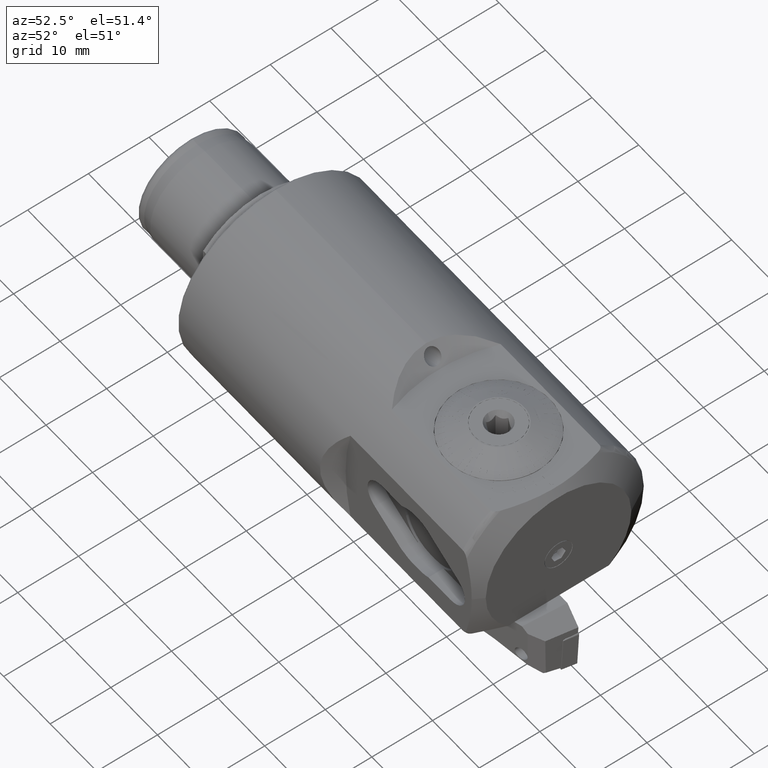
[diagram: clean part render]
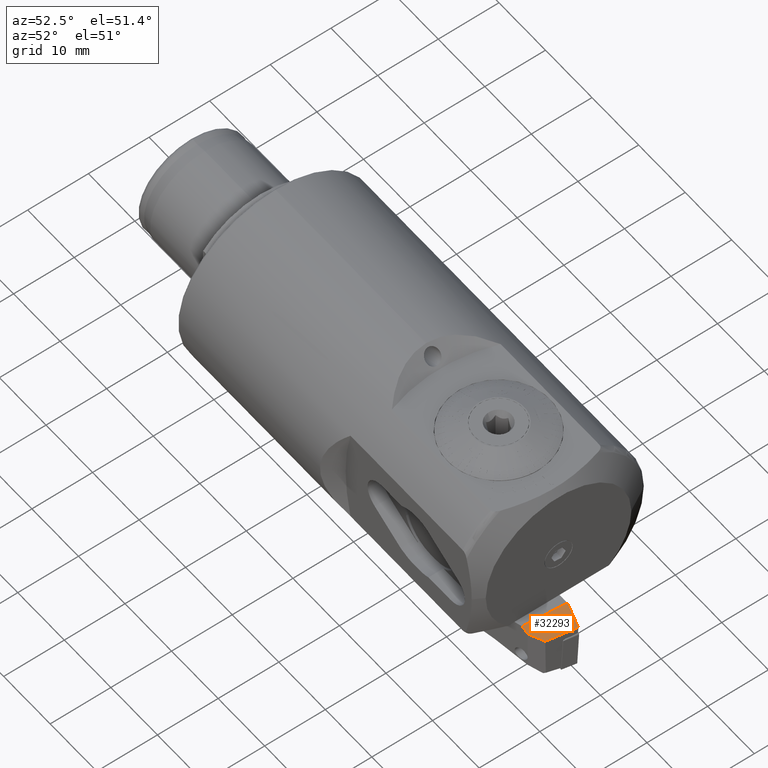
[diagram: same view with one face highlighted and labeled with its STEP entity id]
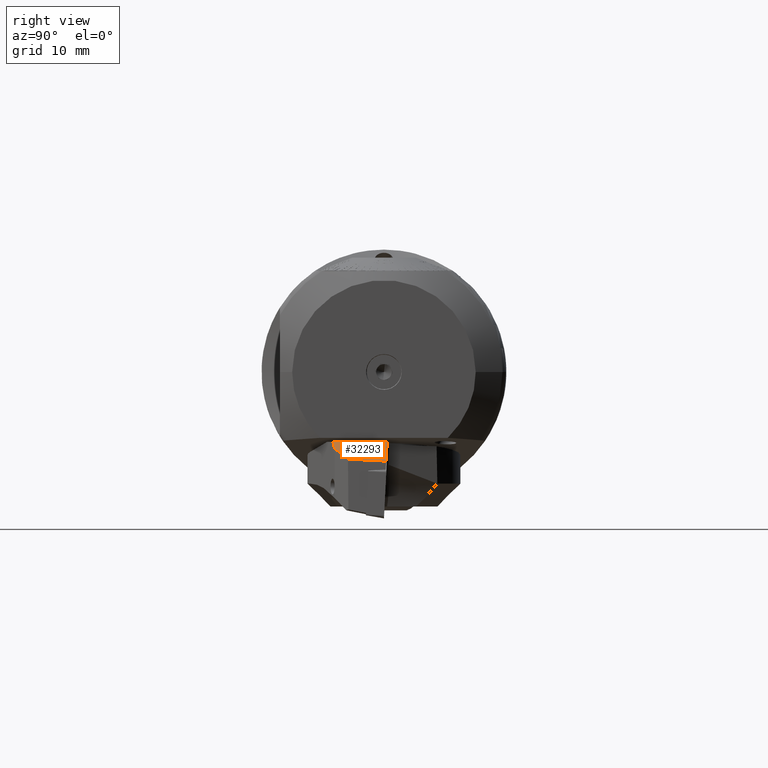
[diagram: same view with one face highlighted and labeled with its STEP entity id]
A machine part, auxiliary view. The second image highlights one B-rep face of the part: STEP entity #32293.
A second angle (right view) of the same face is appended — the face is thin or edge-on in the first view.
In plain terms, the highlighted planar face has unit normal (-0.7018, 0.049, -0.7106).
Its self-contained STEP definition (entity closure, byte-faithful):
#1159 = LINE ( 'NONE', #14587, #26738 ) ;
#1453 = VECTOR ( 'NONE', #4489, 999.9999999999998900 ) ;
#1561 = LINE ( 'NONE', #16248, #27882 ) ;
#2375 = FACE_OUTER_BOUND ( 'NONE', #12658, .T. ) ;
#2550 = ORIENTED_EDGE ( 'NONE', *, *, #31876, .T. ) ;
#3585 = CARTESIAN_POINT ( 'NONE',  ( 0.7068366098255680600, 16.12257449928120000, -4.704340046725548100 ) ) ;
#3625 = VECTOR ( 'NONE', #16512, 1000.000000000000100 ) ;
#4489 = DIRECTION ( 'NONE',  ( -0.5121376221280618000, 0.5638483933587421500, 0.6479120660303987500 ) ) ;
#5050 = CARTESIAN_POINT ( 'NONE',  ( 3.935914685523767400, 12.56745492527518400, -8.789489344497569700 ) ) ;
#5369 = VERTEX_POINT ( 'NONE', #8060 ) ;
#6364 = VECTOR ( 'NONE', #8809, 1000.000000000000200 ) ;
#6471 = EDGE_CURVE ( 'NONE', #32838, #30328, #8350, .T. ) ;
#6666 = DIRECTION ( 'NONE',  ( -0.7034912269333731800, 0.7097470068654202500, -0.03686841294868017200 ) ) ;
#6937 = ORIENTED_EDGE ( 'NONE', *, *, #13334, .F. ) ;
#8060 = CARTESIAN_POINT ( 'NONE',  ( 2.949999999999999300, 14.20964961220420400, 0.4239405582306213800 ) ) ;
#8350 = LINE ( 'NONE', #5050, #1453 ) ;
#8809 = DIRECTION ( 'NONE',  ( 0.0000000000000000000, 0.06971724848217233900, 0.9975667923823822200 ) ) ;
#11075 = DIRECTION ( 'NONE',  ( -0.7106477480614326000, -0.7018361144661940900, 0.04904943023328542400 ) ) ;
#11264 = CARTESIAN_POINT ( 'NONE',  ( 2.950000000000000200, 13.46828881965766000, -10.18400688547597000 ) ) ;
#11356 = ORIENTED_EDGE ( 'NONE', *, *, #19667, .F. ) ;
#12658 = EDGE_LOOP ( 'NONE', ( #30356, #29696, #2550, #6937, #11356 ) ) ;
#13334 = EDGE_CURVE ( 'NONE', #5369, #24959, #1159, .T. ) ;
#14587 = CARTESIAN_POINT ( 'NONE',  ( -6.387991958615755200, 23.63067945454023200, -0.06544286328332801800 ) ) ;
#14889 = LINE ( 'NONE', #24156, #3625 ) ;
#16248 = CARTESIAN_POINT ( 'NONE',  ( -3.417666168838506400, 20.28395017439399000, -4.917693735558955800 ) ) ;
#16512 = DIRECTION ( 'NONE',  ( -0.05194585196140262500, 0.1218693434051478100, 0.9911859016360160500 ) ) ;
#18146 = CARTESIAN_POINT ( 'NONE',  ( 0.4449551062835950800, 16.73697056136383300, 0.2926567183466205500 ) ) ;
#19667 = EDGE_CURVE ( 'NONE', #23991, #5369, #20023, .T. ) ;
#20023 = LINE ( 'NONE', #11264, #6364 ) ;
#21388 = DIRECTION ( 'NONE',  ( 0.6833911364901122900, -0.7051764993400826400, -0.1889514735195763400 ) ) ;
#21854 = AXIS2_PLACEMENT_3D ( 'NONE', #26272, #11075, #28753 ) ;
#23991 = VERTEX_POINT ( 'NONE', #31359 ) ;
#24156 = CARTESIAN_POINT ( 'NONE',  ( 1.150924166773587900, 15.08070769113134600, -13.17803542216997000 ) ) ;
#24959 = VERTEX_POINT ( 'NONE', #18146 ) ;
#26272 = CARTESIAN_POINT ( 'NONE',  ( 1.150924166773587900, 15.08070769113134600, -13.17803542216997000 ) ) ;
#26738 = VECTOR ( 'NONE', #6666, 1000.000000000000000 ) ;
#27214 = CARTESIAN_POINT ( 'NONE',  ( 2.076157856979106200, 14.61499225607226800, -6.436686431699240700 ) ) ;
#27882 = VECTOR ( 'NONE', #21388, 1000.000000000000100 ) ;
#28753 = DIRECTION ( 'NONE',  ( 0.7026818959048842800, -0.7115041483839131800, 0.0000000000000000000 ) ) ;
#29696 = ORIENTED_EDGE ( 'NONE', *, *, #6471, .T. ) ;
#30328 = VERTEX_POINT ( 'NONE', #3585 ) ;
#30356 = ORIENTED_EDGE ( 'NONE', *, *, #32299, .F. ) ;
#31188 = PLANE ( 'NONE',  #21854 ) ;
#31359 = CARTESIAN_POINT ( 'NONE',  ( 2.950000000000000200, 13.71329349164846600, -6.678295887442732900 ) ) ;
#31876 = EDGE_CURVE ( 'NONE', #30328, #24959, #14889, .T. ) ;
#32293 = ADVANCED_FACE ( 'NONE', ( #2375 ), #31188, .F. ) ;
#32299 = EDGE_CURVE ( 'NONE', #32838, #23991, #1561, .T. ) ;
#32838 = VERTEX_POINT ( 'NONE', #27214 ) ;